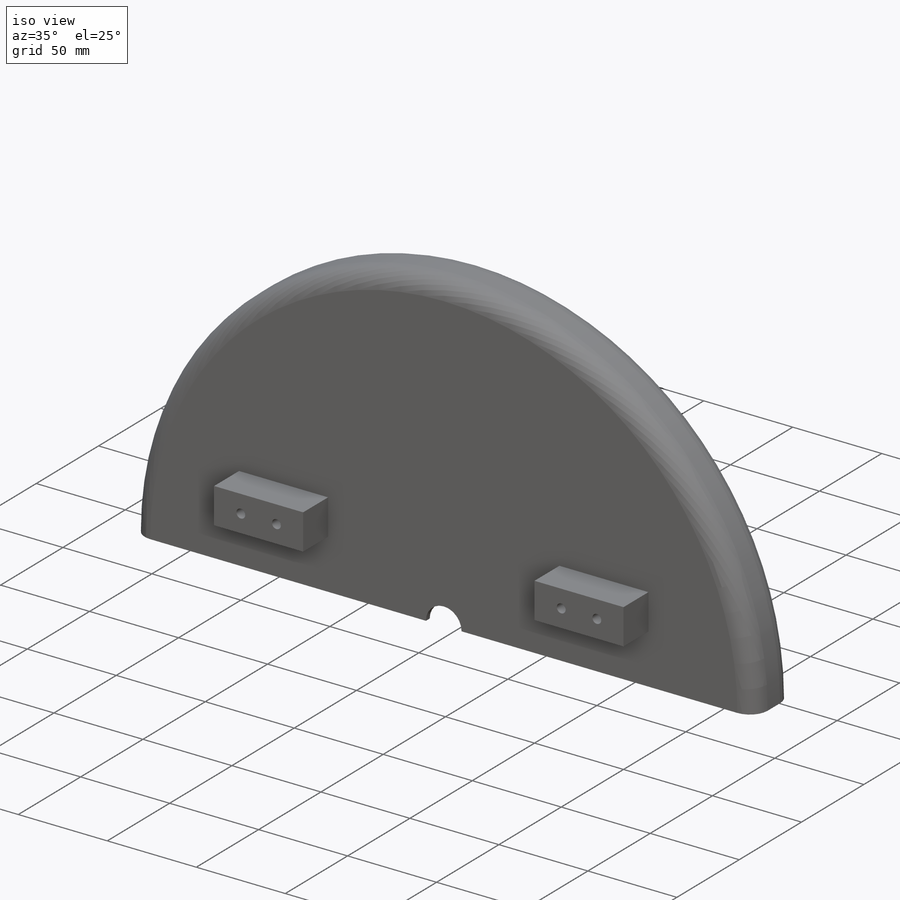
[diagram: iso view]
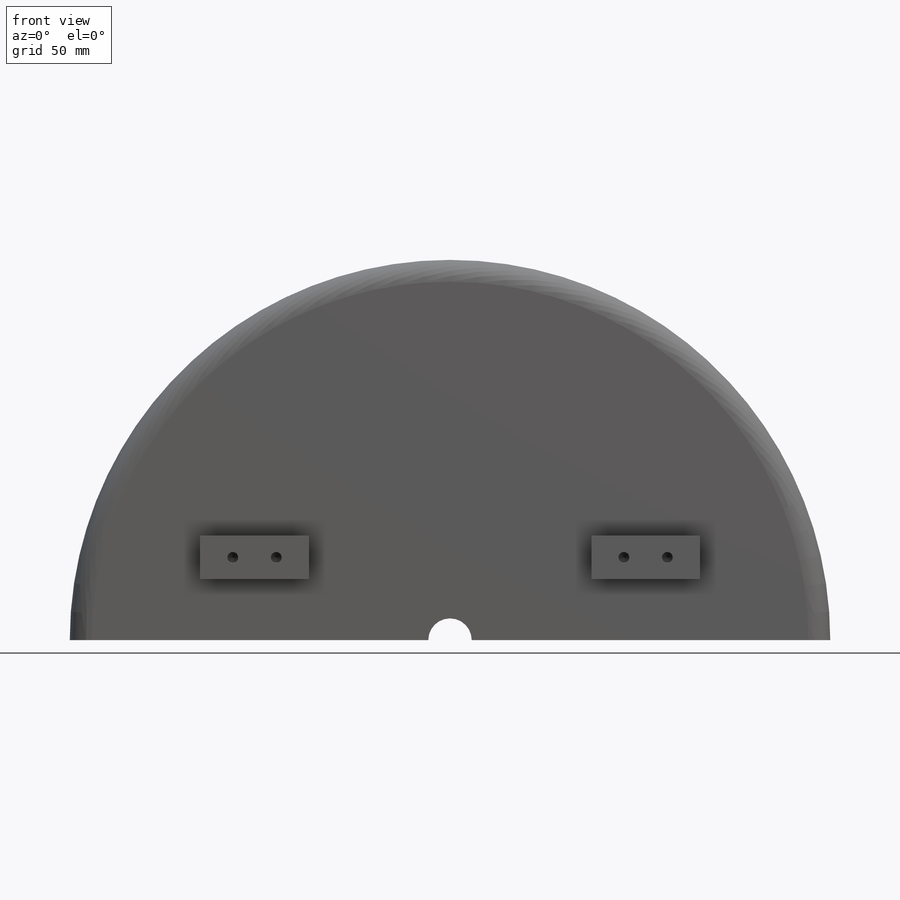
[diagram: front view]
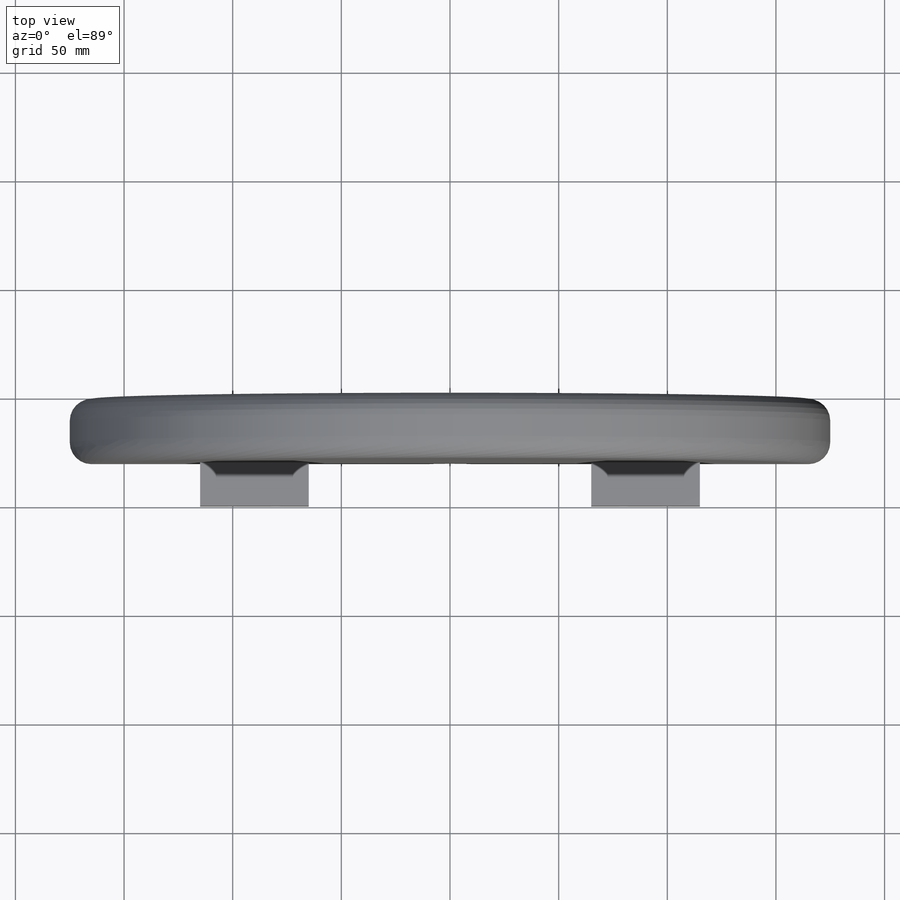
[diagram: top view]
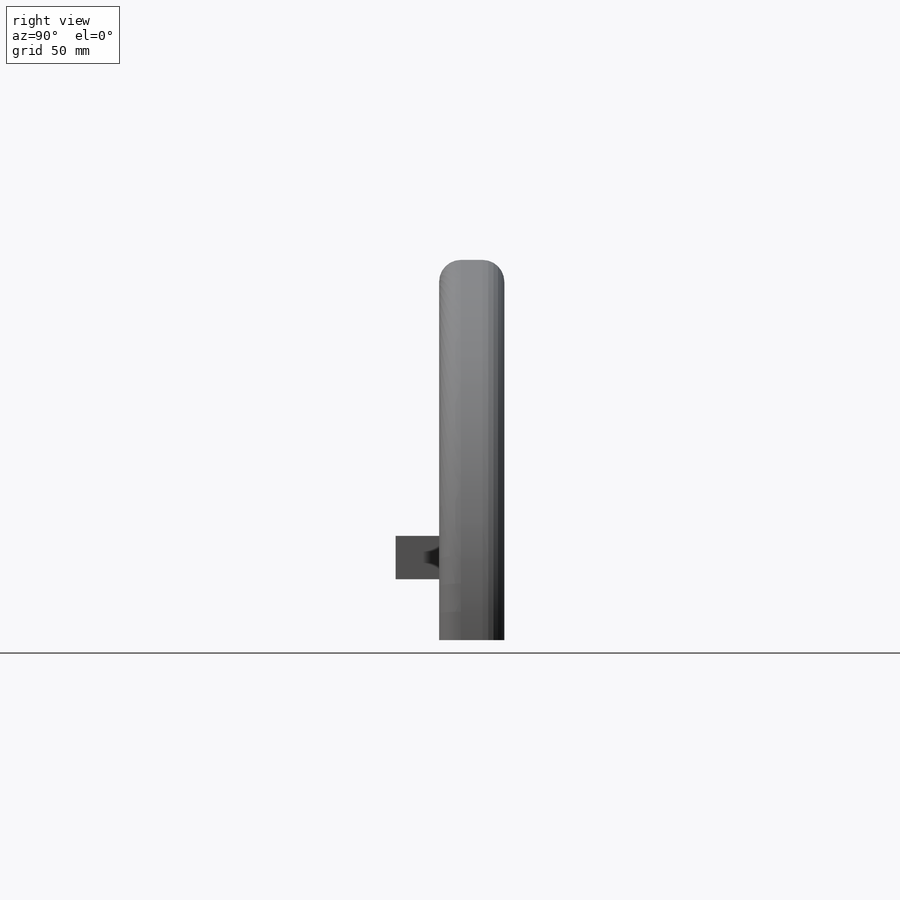
[diagram: right view]
SOLIDWORKS PART (.sldprt)
format: sldprt  version: not decoded by parser v0  size: 296,960 bytes
history: native  units: mm
features: sketch x7, thread x4, cut_extrude x3, extrude x2, material x1, shell x1, fillet x1, mirror x1, hole x1 (+16 scaffold rows collapsed)
feature tree (37):
  scaffold x16  (default folders/planes/origin — collapsed)
  material  "Material <not specified>"
  sketch  "Sketch1"  dims[D1=350.0mm]
  extrude  "Boss-Extrude3"  Depth=30mm
  sketch  "Sketch3"
  cut_extrude  "Cut-Extrude1"  Depth=50mm
  shell  "Shell2"  Thickness=3mm
  sketch  "Sketch4"  dims[D1=20.0mm]
  cut_extrude  "Cut-Extrude2"  Depth=50mm
  fillet  "Fillet1"  Radius=10mm
  sketch  "Sketch6"  dims[D1=100.0mm]
  cut_extrude  "Cut-Extrude4"  Depth=10mm
  sketch  "Sketch9"  dims[D1=20.0mm D2=50.0mm D3=55.0mm D4=48.0mm]
  extrude  "Boss-Extrude4"  Depth=20mm
  mirror  "Mirror2"
  hole  "Ø5.0 (5) Diameter Hole2"  Diameter=5mm Depth=11mm
  sketch  "Sketch12"  dims[D1=20.0mm D2=20.0mm D3=70.0mm D4=70.0mm D5=38.0mm D6=38.0mm]
  sketch  "Sketch11"  dims[hole-wizard template sketch: 50 standard entries collapsed; hole parameters above]
  thread  "Cosmetic Thread1"  Diameter=6mm  [1 undecoded]
  thread  "Cosmetic Thread2"  Diameter=6mm  [1 undecoded]
  thread  "Cosmetic Thread3"  Diameter=6mm  [1 undecoded]
  thread  "Cosmetic Thread4"  Diameter=6mm  [1 undecoded]
decode coverage: 18 of 20 modeling features carry decoded parameters
note: ~ marks probable driven/reference dimensions
note: 4 parameter values undecoded
note: suppression state not decoded; provenance and decode notes live in map.json
